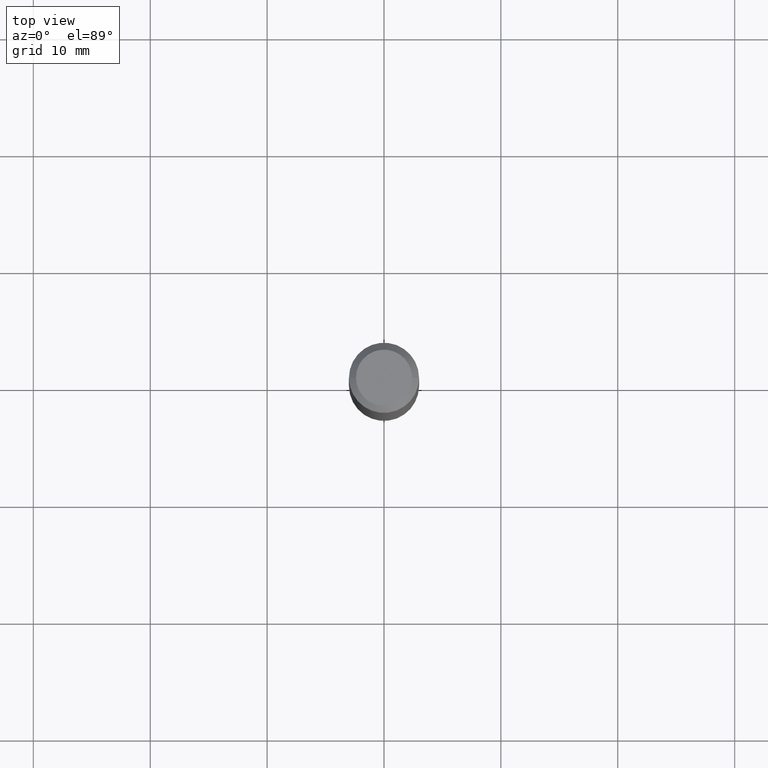
[diagram: clean part render]
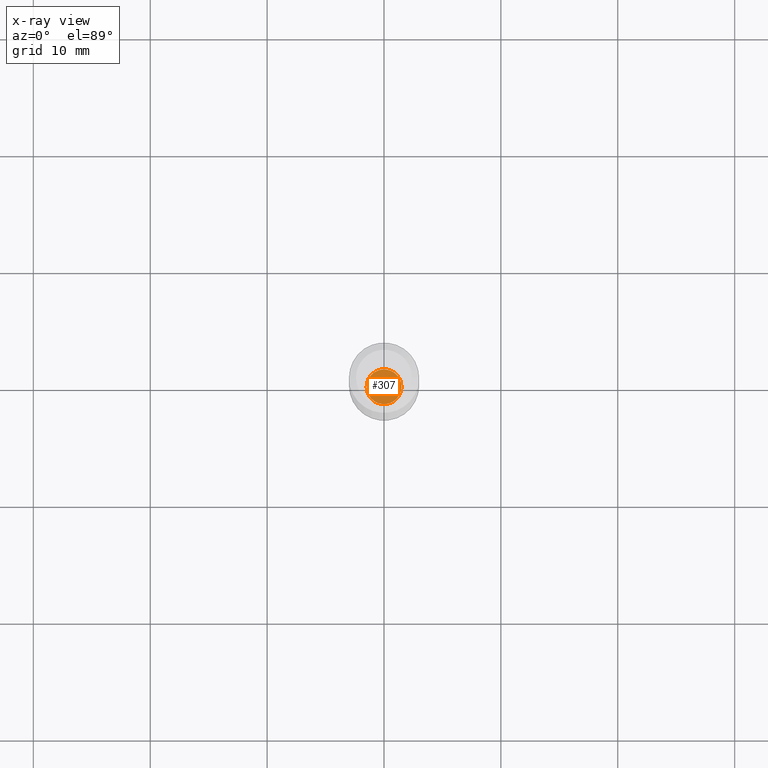
[diagram: x-ray — body ghosted, one internal face saturated and labeled with its STEP entity id]
A machine part, top view, then the same camera in x-ray: the body is ghosted and one INTERNAL B-rep face — a face not visible from any outside direction — is saturated and labeled: STEP entity #307.
In plain terms, the highlighted planar face has unit normal (-0, 0, 1).
Its self-contained STEP definition (entity closure, byte-faithful):
#4 = AXIS2_PLACEMENT_3D ( 'NONE', #229, #161, #310 ) ;
#33 = ORIENTED_EDGE ( 'NONE', *, *, #195, .F. ) ;
#80 = PLANE ( 'NONE',  #158 ) ;
#92 = ORIENTED_EDGE ( 'NONE', *, *, #370, .F. ) ;
#151 = CARTESIAN_POINT ( 'NONE',  ( 4.332392537037588763E-29, -6.185508339894517569E-15, -1.771600000000000286 ) ) ;
#158 = AXIS2_PLACEMENT_3D ( 'NONE', #151, #420, #461 ) ;
#161 = DIRECTION ( 'NONE',  ( -2.445468806185136597E-29, 3.491481338843145583E-15, 1.000000000000000000 ) ) ;
#195 = EDGE_CURVE ( 'NONE', #396, #345, #255, .T. ) ;
#224 = AXIS2_PLACEMENT_3D ( 'NONE', #481, #408, #367 ) ;
#229 = CARTESIAN_POINT ( 'NONE',  ( 4.332392537037588763E-29, -6.185508339894517569E-15, -1.771600000000000286 ) ) ;
#236 = CARTESIAN_POINT ( 'NONE',  ( -0.05854999999999998400, -5.766836340932867774E-15, -1.771600000000000286 ) ) ;
#255 = CIRCLE ( 'NONE', #224, 0.05854999999999998400 ) ;
#298 = FACE_OUTER_BOUND ( 'NONE', #356, .T. ) ;
#307 = ADVANCED_FACE ( 'NONE', ( #298 ), #80, .F. ) ;
#310 = DIRECTION ( 'NONE',  ( 1.000000000000000000, -6.982962677686265922E-15, 0.000000000000000000 ) ) ;
#345 = VERTEX_POINT ( 'NONE', #236 ) ;
#346 = CARTESIAN_POINT ( 'NONE',  ( 0.05854999999999998400, -6.594360804673047905E-15, -1.771600000000000286 ) ) ;
#356 = EDGE_LOOP ( 'NONE', ( #33, #92 ) ) ;
#367 = DIRECTION ( 'NONE',  ( 1.000000000000000000, -6.982962677686265922E-15, 0.000000000000000000 ) ) ;
#370 = EDGE_CURVE ( 'NONE', #345, #396, #417, .T. ) ;
#396 = VERTEX_POINT ( 'NONE', #346 ) ;
#408 = DIRECTION ( 'NONE',  ( -2.445468806185136597E-29, 3.491481338843145583E-15, 1.000000000000000000 ) ) ;
#417 = CIRCLE ( 'NONE', #4, 0.05854999999999998400 ) ;
#420 = DIRECTION ( 'NONE',  ( -2.438088387897960049E-29, 3.491481338843145188E-15, 1.000000000000000000 ) ) ;
#461 = DIRECTION ( 'NONE',  ( 1.000000000000000000, -6.982962677686265922E-15, 4.876176775795935793E-29 ) ) ;
#481 = CARTESIAN_POINT ( 'NONE',  ( 4.332392537037588763E-29, -6.185508339894517569E-15, -1.771600000000000286 ) ) ;